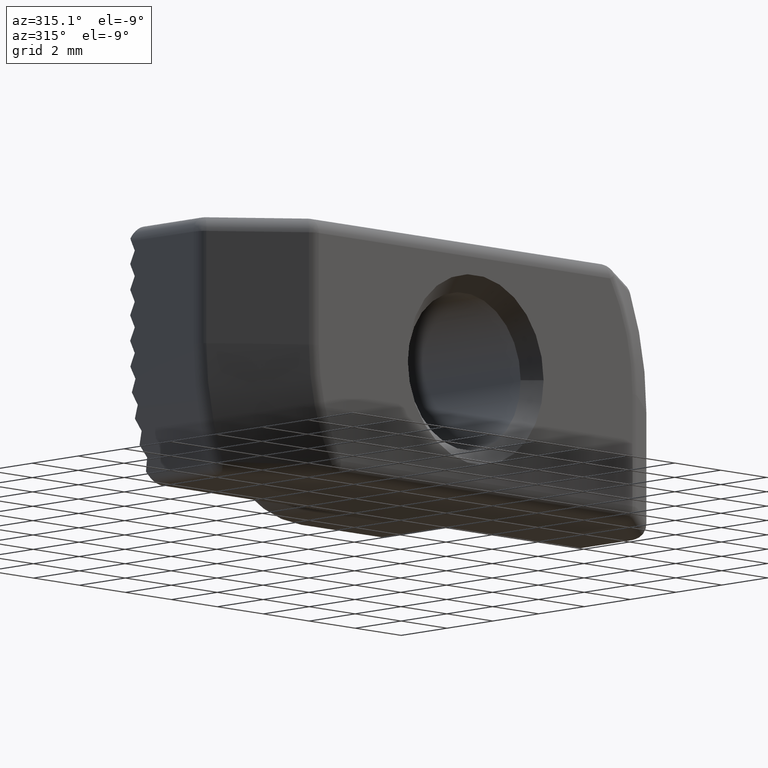
[diagram: clean part render]
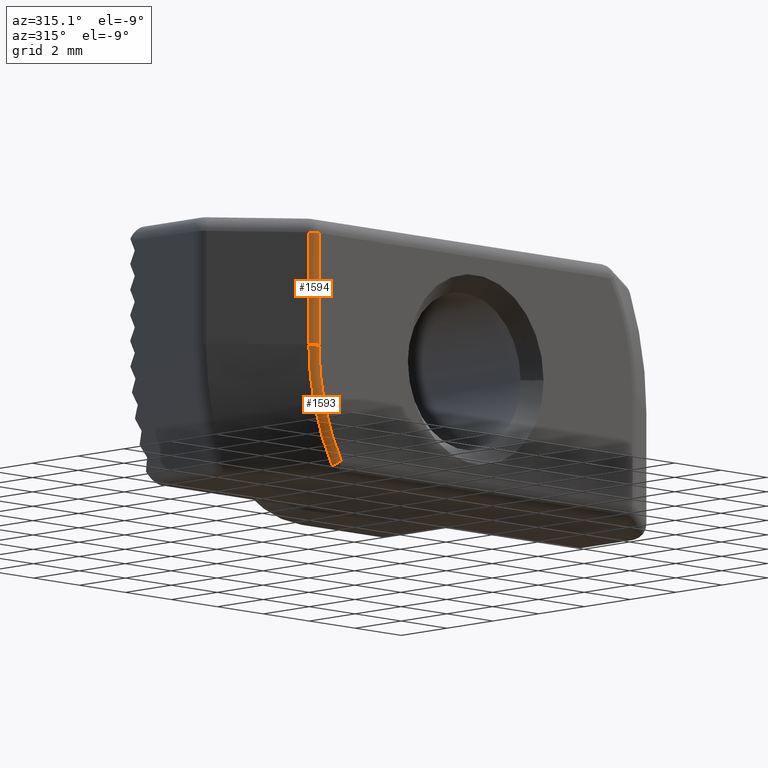
[diagram: same view with one multi-face feature highlighted, each face labeled with its STEP entity id]
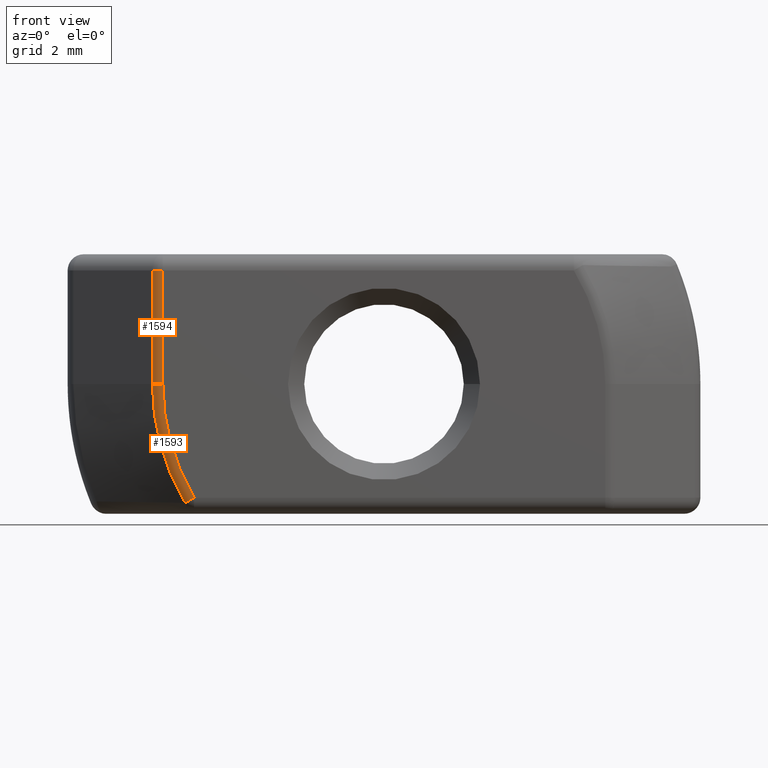
[diagram: same view with one multi-face feature highlighted, each face labeled with its STEP entity id]
A machine part, auxiliary view. The highlighted faces form ONE feature: a constant-radius fillet chain: 2 tangent blend faces with common blend radius 0.5 mm. The faces share edges in the B-rep.
A second angle (front view) of the same feature is appended — it is thin or edge-on in the first view.
Their STEP definitions:
[1] entity #1593 (Torus):
#19=TOROIDAL_SURFACE('',#1745,6.8184699230329,0.5);
#456=FACE_OUTER_BOUND('',#560,.T.);
#560=EDGE_LOOP('',(#1211,#1212,#1213,#1214));
#641=CIRCLE('',#1681,6.8184699230329);
#666=CIRCLE('',#1743,0.5);
#668=CIRCLE('',#1746,0.5);
#669=CIRCLE('',#1747,7.13924752327845);
#704=VERTEX_POINT('',#2446);
#705=VERTEX_POINT('',#2448);
#765=VERTEX_POINT('',#2621);
#766=VERTEX_POINT('',#2625);
#852=EDGE_CURVE('',#705,#704,#641,.T.);
#934=EDGE_CURVE('',#765,#705,#666,.F.);
#936=EDGE_CURVE('',#704,#766,#668,.T.);
#937=EDGE_CURVE('',#766,#765,#669,.T.);
#1211=ORIENTED_EDGE('',*,*,#936,.T.);
#1212=ORIENTED_EDGE('',*,*,#937,.T.);
#1213=ORIENTED_EDGE('',*,*,#934,.T.);
#1214=ORIENTED_EDGE('',*,*,#852,.T.);
#1593=ADVANCED_FACE('',(#456),#19,.T.);
#1681=AXIS2_PLACEMENT_3D('',#2449,#1906,#1907);
#1743=AXIS2_PLACEMENT_3D('',#2622,#2067,#2068);
#1745=AXIS2_PLACEMENT_3D('',#2624,#2071,#2072);
#1746=AXIS2_PLACEMENT_3D('',#2626,#2073,#2074);
#1747=AXIS2_PLACEMENT_3D('',#2627,#2075,#2076);
#1906=DIRECTION('center_axis',(0.,1.,0.));
#1907=DIRECTION('ref_axis',(-0.954110005881997,0.,-0.29945633517402));
#2067=DIRECTION('center_axis',(0.513311643154667,9.82855153251262E-13,-0.858202282100121));
#2068=DIRECTION('ref_axis',(-0.55058413715428,-0.767076870152411,-0.329317754139158));
#2071=DIRECTION('center_axis',(0.,-1.,0.));
#2072=DIRECTION('ref_axis',(0.,0.,-1.));
#2073=DIRECTION('center_axis',(8.65259157571542E-16,0.,-1.));
#2074=DIRECTION('ref_axis',(0.,-1.,0.));
#2075=DIRECTION('center_axis',(0.,-1.,0.));
#2076=DIRECTION('ref_axis',(-0.954110005881997,0.,-0.29945633517402));
#2446=CARTESIAN_POINT('',(-6.8184699230329,-5.3,2.77555756156289E-16));
#2448=CARTESIAN_POINT('',(-5.8516264483735,-5.3,-3.5));
#2449=CARTESIAN_POINT('Origin',(0.,-5.3,0.));
#2621=CARTESIAN_POINT('',(-6.12691851695136,-5.18353843507569,-3.66465887706958));
#2622=CARTESIAN_POINT('Origin',(-5.85162644837375,-4.8,-3.49999999999958));
#2624=CARTESIAN_POINT('Origin',(0.,-4.8,0.));
#2625=CARTESIAN_POINT('',(-7.13924752327845,-5.18353843507621,0.));
#2626=CARTESIAN_POINT('Origin',(-6.8184699230329,-4.8,2.77555756156289E-16));
#2627=CARTESIAN_POINT('Origin',(-5.55111512312578E-16,-5.18353843507621,
9.71445146547012E-16));
[2] entity #1594 (Cylinder):
#95=LINE('',#2447,#225);
#133=LINE('',#2629,#263);
#225=VECTOR('',#1905,3.5);
#263=VECTOR('',#2079,3.5);
#411=CYLINDRICAL_SURFACE('',#1748,0.5);
#457=FACE_OUTER_BOUND('',#561,.T.);
#561=EDGE_LOOP('',(#1215,#1216,#1217,#1218));
#663=CIRCLE('',#1739,0.5);
#668=CIRCLE('',#1746,0.5);
#703=VERTEX_POINT('',#2444);
#704=VERTEX_POINT('',#2446);
#764=VERTEX_POINT('',#2615);
#766=VERTEX_POINT('',#2625);
#851=EDGE_CURVE('',#704,#703,#95,.T.);
#931=EDGE_CURVE('',#703,#764,#663,.F.);
#936=EDGE_CURVE('',#704,#766,#668,.T.);
#938=EDGE_CURVE('',#764,#766,#133,.T.);
#1215=ORIENTED_EDGE('',*,*,#931,.T.);
#1216=ORIENTED_EDGE('',*,*,#938,.T.);
#1217=ORIENTED_EDGE('',*,*,#936,.F.);
#1218=ORIENTED_EDGE('',*,*,#851,.T.);
#1594=ADVANCED_FACE('',(#457),#411,.T.);
#1739=AXIS2_PLACEMENT_3D('',#2617,#2059,#2060);
#1746=AXIS2_PLACEMENT_3D('',#2626,#2073,#2074);
#1748=AXIS2_PLACEMENT_3D('',#2628,#2077,#2078);
#1905=DIRECTION('',(0.,0.,1.));
#2059=DIRECTION('center_axis',(0.,0.,1.));
#2060=DIRECTION('ref_axis',(0.,-1.,0.));
#2073=DIRECTION('center_axis',(8.65259157571542E-16,0.,-1.));
#2074=DIRECTION('ref_axis',(0.,-1.,0.));
#2077=DIRECTION('center_axis',(0.,0.,1.));
#2078=DIRECTION('ref_axis',(-0.341264655251311,-0.939967252129671,0.));
#2079=DIRECTION('',(0.,0.,-1.));
#2444=CARTESIAN_POINT('',(-6.8184699230329,-5.3,3.5));
#2446=CARTESIAN_POINT('',(-6.8184699230329,-5.3,2.77555756156289E-16));
#2447=CARTESIAN_POINT('',(-6.8184699230329,-5.3,0.));
#2615=CARTESIAN_POINT('',(-7.13924752327845,-5.18353843507621,3.5));
#2617=CARTESIAN_POINT('Origin',(-6.8184699230329,-4.8,3.5));
#2625=CARTESIAN_POINT('',(-7.13924752327845,-5.18353843507621,0.));
#2626=CARTESIAN_POINT('Origin',(-6.8184699230329,-4.8,2.77555756156289E-16));
#2628=CARTESIAN_POINT('Origin',(-6.8184699230329,-4.8,0.));
#2629=CARTESIAN_POINT('',(-7.13924752327845,-5.18353843507621,0.));